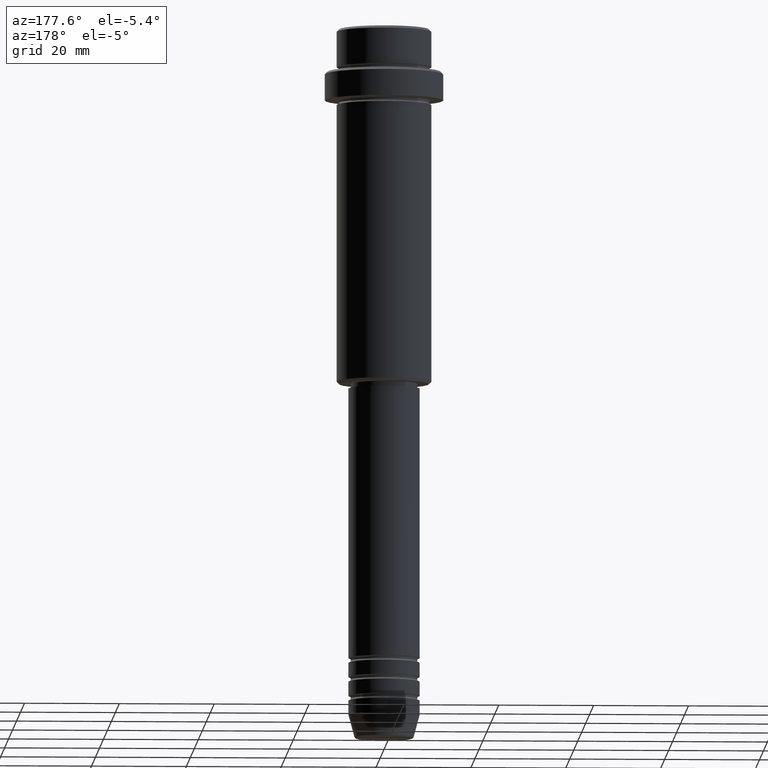
[diagram: clean part render]
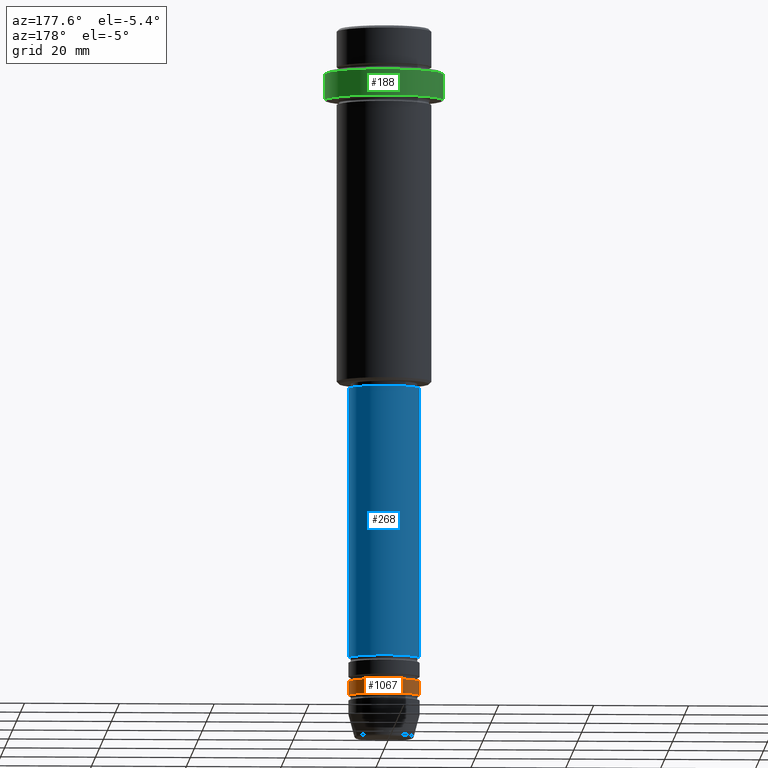
[diagram: same view with three faces highlighted in distinct colors, each labeled with its STEP entity id]
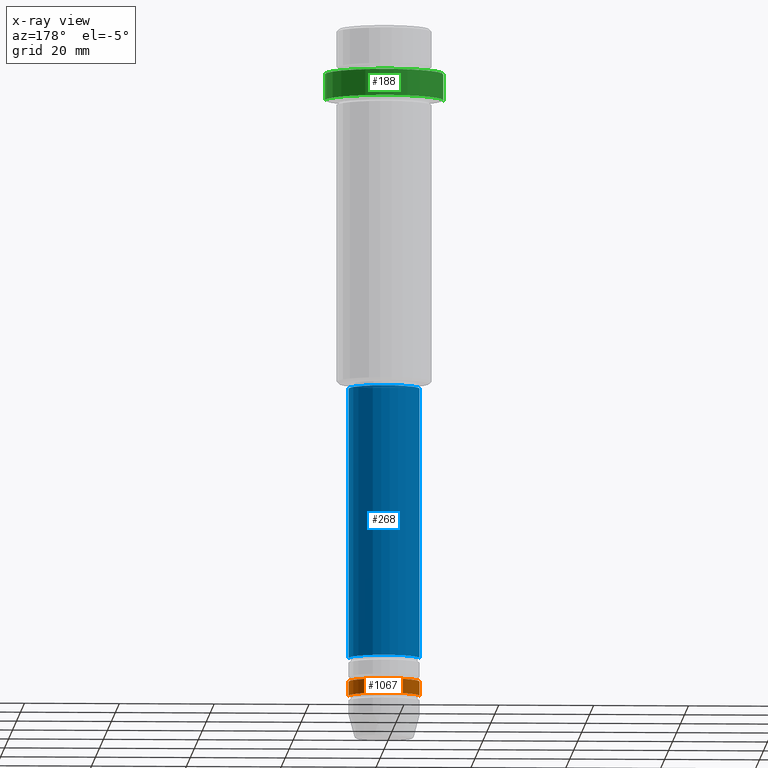
[diagram: x-ray of the same camera — body ghosted, the three highlighted faces saturated]
A machine part, auxiliary view with three faces highlighted in distinct colors.
The next image is the same camera in x-ray (body ghosted, the three faces saturated) — at least one of them is partly hidden behind the body in this view.
Their STEP definitions:

[orange] entity #1067 — the highlighted cylindrical surface (edge-blend (fillet) strip) has radius 7.5 mm, axis along (-0, -0, 1).
#34 = CARTESIAN_POINT ( 'NONE',  ( 0.000000000000000000, 0.000000000000000000, 0.000000000000000000 ) ) ;
#59 = CIRCLE ( 'NONE', #999, 7.500000000000000000 ) ;
#137 = EDGE_CURVE ( 'NONE', #806, #675, #587, .T. ) ;
#183 = CARTESIAN_POINT ( 'NONE',  ( 7.500000000000000000, 0.000000000000000000, -137.9999999999998863 ) ) ;
#219 = EDGE_CURVE ( 'NONE', #466, #806, #1103, .T. ) ;
#248 = CARTESIAN_POINT ( 'NONE',  ( 7.500000000000000000, 0.000000000000000000, -140.9999999999998579 ) ) ;
#258 = DIRECTION ( 'NONE',  ( -0.000000000000000000, -0.000000000000000000, 1.000000000000000000 ) ) ;
#275 = CARTESIAN_POINT ( 'NONE',  ( -7.500000000000000000, 9.184850993605147944E-16, 0.000000000000000000 ) ) ;
#329 = DIRECTION ( 'NONE',  ( 1.000000000000000000, 0.000000000000000000, 0.000000000000000000 ) ) ;
#364 = EDGE_LOOP ( 'NONE', ( #866, #1245, #785, #943 ) ) ;
#381 = FACE_OUTER_BOUND ( 'NONE', #364, .T. ) ;
#466 = VERTEX_POINT ( 'NONE', #248 ) ;
#489 = DIRECTION ( 'NONE',  ( 1.000000000000000000, 0.000000000000000000, 0.000000000000000000 ) ) ;
#495 = CYLINDRICAL_SURFACE ( 'NONE', #978, 7.500000000000000000 ) ;
#511 = CARTESIAN_POINT ( 'NONE',  ( -7.500000000000000000, 9.184850993605147944E-16, -137.9999999999998863 ) ) ;
#556 = DIRECTION ( 'NONE',  ( -0.000000000000000000, -0.000000000000000000, 1.000000000000000000 ) ) ;
#587 = LINE ( 'NONE', #275, #1202 ) ;
#598 = VECTOR ( 'NONE', #1218, 1000.000000000000000 ) ;
#675 = VERTEX_POINT ( 'NONE', #511 ) ;
#714 = DIRECTION ( 'NONE',  ( 1.000000000000000000, 0.000000000000000000, 0.000000000000000000 ) ) ;
#722 = DIRECTION ( 'NONE',  ( -0.000000000000000000, -0.000000000000000000, 1.000000000000000000 ) ) ;
#725 = VERTEX_POINT ( 'NONE', #183 ) ;
#737 = CARTESIAN_POINT ( 'NONE',  ( -7.500000000000000000, 9.184850993605147944E-16, -140.9999999999998579 ) ) ;
#785 = ORIENTED_EDGE ( 'NONE', *, *, #930, .F. ) ;
#791 = AXIS2_PLACEMENT_3D ( 'NONE', #828, #954, #714 ) ;
#792 = CARTESIAN_POINT ( 'NONE',  ( 0.000000000000000000, 0.000000000000000000, -137.9999999999998863 ) ) ;
#806 = VERTEX_POINT ( 'NONE', #737 ) ;
#828 = CARTESIAN_POINT ( 'NONE',  ( 0.000000000000000000, 0.000000000000000000, -140.9999999999998579 ) ) ;
#866 = ORIENTED_EDGE ( 'NONE', *, *, #219, .T. ) ;
#930 = EDGE_CURVE ( 'NONE', #725, #675, #59, .T. ) ;
#943 = ORIENTED_EDGE ( 'NONE', *, *, #1220, .F. ) ;
#954 = DIRECTION ( 'NONE',  ( -0.000000000000000000, -0.000000000000000000, 1.000000000000000000 ) ) ;
#978 = AXIS2_PLACEMENT_3D ( 'NONE', #34, #258, #489 ) ;
#999 = AXIS2_PLACEMENT_3D ( 'NONE', #792, #556, #329 ) ;
#1067 = ADVANCED_FACE ( 'NONE', ( #381 ), #495, .T. ) ;
#1083 = LINE ( 'NONE', #1298, #598 ) ;
#1103 = CIRCLE ( 'NONE', #791, 7.500000000000000000 ) ;
#1202 = VECTOR ( 'NONE', #722, 1000.000000000000000 ) ;
#1218 = DIRECTION ( 'NONE',  ( -0.000000000000000000, -0.000000000000000000, 1.000000000000000000 ) ) ;
#1220 = EDGE_CURVE ( 'NONE', #466, #725, #1083, .T. ) ;
#1245 = ORIENTED_EDGE ( 'NONE', *, *, #137, .T. ) ;
#1298 = CARTESIAN_POINT ( 'NONE',  ( 7.500000000000000000, 0.000000000000000000, 0.000000000000000000 ) ) ;

[blue] entity #268 — the highlighted cylindrical surface (edge-blend (fillet) strip) has radius 7.5 mm, axis along (-0, -0, 1).
#61 = EDGE_CURVE ( 'NONE', #979, #467, #249, .T. ) ;
#65 = DIRECTION ( 'NONE',  ( -0.000000000000000000, -0.000000000000000000, 1.000000000000000000 ) ) ;
#83 = ORIENTED_EDGE ( 'NONE', *, *, #595, .T. ) ;
#94 = EDGE_CURVE ( 'NONE', #467, #294, #1056, .T. ) ;
#143 = CARTESIAN_POINT ( 'NONE',  ( 7.500000000000000000, 0.000000000000000000, -132.9999999999998579 ) ) ;
#235 = DIRECTION ( 'NONE',  ( -0.000000000000000000, -0.000000000000000000, 1.000000000000000000 ) ) ;
#249 = LINE ( 'NONE', #477, #580 ) ;
#263 = DIRECTION ( 'NONE',  ( -0.000000000000000000, -0.000000000000000000, 1.000000000000000000 ) ) ;
#268 = ADVANCED_FACE ( 'NONE', ( #1290 ), #893, .T. ) ;
#294 = VERTEX_POINT ( 'NONE', #1211 ) ;
#305 = DIRECTION ( 'NONE',  ( 1.000000000000000000, 0.000000000000000000, 0.000000000000000000 ) ) ;
#326 = EDGE_LOOP ( 'NONE', ( #488, #83, #469, #380 ) ) ;
#380 = ORIENTED_EDGE ( 'NONE', *, *, #61, .F. ) ;
#467 = VERTEX_POINT ( 'NONE', #1124 ) ;
#469 = ORIENTED_EDGE ( 'NONE', *, *, #94, .F. ) ;
#477 = CARTESIAN_POINT ( 'NONE',  ( 7.500000000000000000, 0.000000000000000000, 0.000000000000000000 ) ) ;
#484 = DIRECTION ( 'NONE',  ( -0.000000000000000000, -0.000000000000000000, 1.000000000000000000 ) ) ;
#488 = ORIENTED_EDGE ( 'NONE', *, *, #1023, .T. ) ;
#508 = CIRCLE ( 'NONE', #1363, 7.500000000000000000 ) ;
#580 = VECTOR ( 'NONE', #683, 1000.000000000000000 ) ;
#595 = EDGE_CURVE ( 'NONE', #1339, #294, #1136, .T. ) ;
#683 = DIRECTION ( 'NONE',  ( -0.000000000000000000, -0.000000000000000000, 1.000000000000000000 ) ) ;
#690 = CARTESIAN_POINT ( 'NONE',  ( -7.500000000000000000, 9.184850993605147944E-16, -132.9999999999998579 ) ) ;
#767 = AXIS2_PLACEMENT_3D ( 'NONE', #870, #235, #305 ) ;
#815 = DIRECTION ( 'NONE',  ( 1.000000000000000000, 0.000000000000000000, 0.000000000000000000 ) ) ;
#868 = CARTESIAN_POINT ( 'NONE',  ( -7.500000000000000000, 9.184850993605147944E-16, 0.000000000000000000 ) ) ;
#870 = CARTESIAN_POINT ( 'NONE',  ( 0.000000000000000000, 0.000000000000000000, 0.000000000000000000 ) ) ;
#893 = CYLINDRICAL_SURFACE ( 'NONE', #767, 7.500000000000000000 ) ;
#910 = AXIS2_PLACEMENT_3D ( 'NONE', #1112, #263, #928 ) ;
#928 = DIRECTION ( 'NONE',  ( 1.000000000000000000, 0.000000000000000000, 0.000000000000000000 ) ) ;
#979 = VERTEX_POINT ( 'NONE', #143 ) ;
#1023 = EDGE_CURVE ( 'NONE', #979, #1339, #508, .T. ) ;
#1056 = CIRCLE ( 'NONE', #910, 7.500000000000000000 ) ;
#1112 = CARTESIAN_POINT ( 'NONE',  ( 0.000000000000000000, 0.000000000000000000, -75.99999999999998579 ) ) ;
#1124 = CARTESIAN_POINT ( 'NONE',  ( 7.500000000000000000, 0.000000000000000000, -75.99999999999998579 ) ) ;
#1136 = LINE ( 'NONE', #868, #1244 ) ;
#1211 = CARTESIAN_POINT ( 'NONE',  ( -7.500000000000000000, 9.184850993605147944E-16, -75.99999999999998579 ) ) ;
#1244 = VECTOR ( 'NONE', #484, 1000.000000000000000 ) ;
#1259 = CARTESIAN_POINT ( 'NONE',  ( 0.000000000000000000, 0.000000000000000000, -132.9999999999998579 ) ) ;
#1290 = FACE_OUTER_BOUND ( 'NONE', #326, .T. ) ;
#1339 = VERTEX_POINT ( 'NONE', #690 ) ;
#1363 = AXIS2_PLACEMENT_3D ( 'NONE', #1259, #65, #815 ) ;

[green] entity #188 — the highlighted cylindrical surface (partial cylindrical patch) has radius 12.5 mm, axis along (-0, -0, 1).
#21 = DIRECTION ( 'NONE',  ( -0.000000000000000000, -0.000000000000000000, 1.000000000000000000 ) ) ;
#26 = VERTEX_POINT ( 'NONE', #705 ) ;
#84 = CARTESIAN_POINT ( 'NONE',  ( 12.50000000000000000, 0.000000000000000000, 0.000000000000000000 ) ) ;
#181 = DIRECTION ( 'NONE',  ( -0.000000000000000000, -0.000000000000000000, 1.000000000000000000 ) ) ;
#185 = CARTESIAN_POINT ( 'NONE',  ( 0.000000000000000000, 0.000000000000000000, 0.000000000000000000 ) ) ;
#187 = EDGE_LOOP ( 'NONE', ( #590, #1077, #610, #257 ) ) ;
#188 = ADVANCED_FACE ( 'NONE', ( #377 ), #298, .T. ) ;
#257 = ORIENTED_EDGE ( 'NONE', *, *, #1117, .F. ) ;
#283 = CIRCLE ( 'NONE', #461, 12.50000000000000000 ) ;
#298 = CYLINDRICAL_SURFACE ( 'NONE', #1404, 12.50000000000000000 ) ;
#300 = LINE ( 'NONE', #963, #1376 ) ;
#317 = VERTEX_POINT ( 'NONE', #1089 ) ;
#377 = FACE_OUTER_BOUND ( 'NONE', #187, .T. ) ;
#400 = CARTESIAN_POINT ( 'NONE',  ( 0.000000000000000000, 0.000000000000000000, -9.499999999999952038 ) ) ;
#409 = DIRECTION ( 'NONE',  ( 1.000000000000000000, 0.000000000000000000, 0.000000000000000000 ) ) ;
#458 = EDGE_CURVE ( 'NONE', #317, #26, #283, .T. ) ;
#461 = AXIS2_PLACEMENT_3D ( 'NONE', #1249, #21, #688 ) ;
#503 = LINE ( 'NONE', #84, #1278 ) ;
#513 = DIRECTION ( 'NONE',  ( -0.000000000000000000, -0.000000000000000000, 1.000000000000000000 ) ) ;
#590 = ORIENTED_EDGE ( 'NONE', *, *, #458, .T. ) ;
#610 = ORIENTED_EDGE ( 'NONE', *, *, #756, .T. ) ;
#688 = DIRECTION ( 'NONE',  ( 1.000000000000000000, 0.000000000000000000, 0.000000000000000000 ) ) ;
#702 = CARTESIAN_POINT ( 'NONE',  ( 12.50000000000000000, 0.000000000000000000, -9.499999999999952038 ) ) ;
#705 = CARTESIAN_POINT ( 'NONE',  ( -12.50000000000000000, 1.530808498934191521E-15, -15.00000000000000178 ) ) ;
#756 = EDGE_CURVE ( 'NONE', #1401, #984, #1021, .T. ) ;
#909 = CARTESIAN_POINT ( 'NONE',  ( -12.50000000000000000, 1.530808498934191521E-15, -9.499999999999952038 ) ) ;
#934 = AXIS2_PLACEMENT_3D ( 'NONE', #400, #981, #409 ) ;
#950 = DIRECTION ( 'NONE',  ( -0.000000000000000000, -0.000000000000000000, 1.000000000000000000 ) ) ;
#963 = CARTESIAN_POINT ( 'NONE',  ( -12.50000000000000000, 1.530808498934191521E-15, 0.000000000000000000 ) ) ;
#981 = DIRECTION ( 'NONE',  ( 0.000000000000000000, 0.000000000000000000, -1.000000000000000000 ) ) ;
#984 = VERTEX_POINT ( 'NONE', #702 ) ;
#1021 = CIRCLE ( 'NONE', #934, 12.50000000000000000 ) ;
#1077 = ORIENTED_EDGE ( 'NONE', *, *, #1135, .T. ) ;
#1089 = CARTESIAN_POINT ( 'NONE',  ( 12.50000000000000000, 0.000000000000000000, -15.00000000000000178 ) ) ;
#1117 = EDGE_CURVE ( 'NONE', #317, #984, #503, .T. ) ;
#1135 = EDGE_CURVE ( 'NONE', #26, #1401, #300, .T. ) ;
#1177 = DIRECTION ( 'NONE',  ( 1.000000000000000000, 0.000000000000000000, 0.000000000000000000 ) ) ;
#1249 = CARTESIAN_POINT ( 'NONE',  ( 0.000000000000000000, 0.000000000000000000, -15.00000000000000178 ) ) ;
#1278 = VECTOR ( 'NONE', #181, 1000.000000000000000 ) ;
#1376 = VECTOR ( 'NONE', #950, 1000.000000000000000 ) ;
#1401 = VERTEX_POINT ( 'NONE', #909 ) ;
#1404 = AXIS2_PLACEMENT_3D ( 'NONE', #185, #513, #1177 ) ;